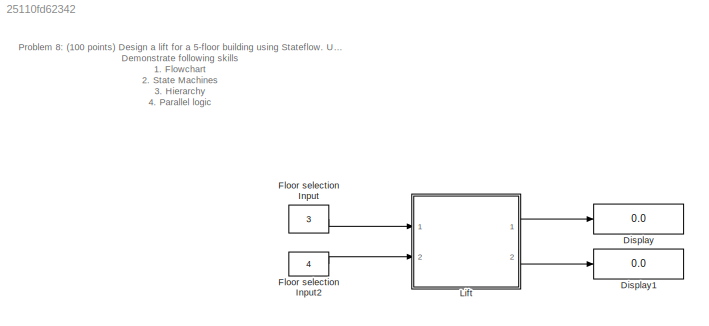
MODEL slx_25110fd62342
KIND model
CONFIG AbsTol = auto
CONFIG EnableMultiTasking = off
CONFIG FixedStep = auto
CONFIG MaxStep = auto
CONFIG MinStep = auto
CONFIG RelTol = 1e-3
CONFIG SampleTimeConstraint = Unconstrained
CONFIG Solver = VariableStepAuto
CONFIG SolverName = VariableStepAuto
CONFIG StartTime = 0.0
CONFIG StopTime = 5
BLOCK [Display] Display
  Decimation = 1
  Ports = [1]
BLOCK [Display] Display1
  Decimation = 1
  Ports = [1]
BLOCK [Constant] Floor selection Input
  Value = 3
BLOCK [Constant] Floor selection Input2
  Value = 4
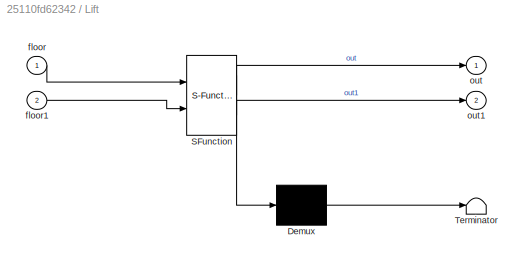
BLOCK [SubSystem] Lift
  ErrorFcn = Stateflow.Translate.translate
  PermitHierarchicalResolution = ExplicitOnly
  Ports = [2, 2]
  RequestExecContextInheritance = off
  SFBlockType = Chart
  TreatAsAtomicUnit = on
BLOCK [Demux] Lift/ Demux 
  Outputs = 1
  Ports = [1, 1]
BLOCK [S-Function] Lift/ SFunction 
  EnableBusSupport = on
  FunctionName = sf_sfun
  PortCounts = [2 3]
  Ports = [2, 3]
  SFcnIsStateOwnerBlock = off
  SFunctionDeploymentMode = off
  Tag = Stateflow S-Function 3
BLOCK [Terminator] Lift/ Terminator 
BLOCK [Inport] Lift/floor
BLOCK [Inport] Lift/floor1
  Port = 2
BLOCK [Outport] Lift/out
BLOCK [Outport] Lift/out1
  Port = 2
ANNOTATION (root): Problem 8: (100 points) Design a lift for a 5-floor building using Stateflow. Use your creativity. Demonstrate following skills 1. Flowchart 2. State Machines 3. Hierarchy 4. Parallel logic 5. Events 6. Stateflow Function
LINE Floor selection Input2:1 -> Lift:2
LINE Floor selection Input:1 -> Lift:1
LINE Lift:1 -> Display:1
LINE Lift:2 -> Display1:1
CHART Lift states=13 transitions=25
  STATE_LABEL 'Start'
  STATE_LABEL 'Lift_For_five_floor'
  STATE_LABEL 'Floor1\nentry:\npresent=1;\nout=1;'
  STATE_LABEL 'Floor2\nentry:\nout=2;\npresent=out;'
  STATE_LABEL 'Floor3\nentry:\nout=3;\npresent=out;'
  STATE_LABEL 'Floor4\nentry:\nout=4;\npresent=out;'
  STATE_LABEL 'Floor5\nentry:\nout=5;\npresent=out'
  STATE_LABEL '[present==floor]'
  STATE_LABEL '[present<floor]'
  STATE_LABEL '[present<floor]'
  STATE_LABEL '[present<floor]'
  STATE_LABEL '[present<floor]'
  STATE_LABEL '[floor==present]'
  STATE_LABEL '[present>floor]'
  STATE_LABEL '[present>floor]'
  STATE_LABEL '[present>floor]'
  STATE_LABEL '[present>floor]'
  STATE_LABEL 'H'
  STATE_LABEL 'Second_input'
  STATE_LABEL 'Floor1\nentry:\npresent=1;\nout1=1;'
  STATE_LABEL 'Floor2\nentry:\nout1=2;\npresent=out1;'
  STATE_LABEL 'Floor3\nentry:\nout1=3;\npresent=out1;'
  STATE_LABEL 'Floor4\nentry:\nout1=4;\npresent=out1;'
  STATE_LABEL 'Floor5\nentry:\nout1=5;\npresent=out1;'
  STATE_LABEL '[present==floor1]'
  STATE_LABEL '[present<floor1]'
  STATE_LABEL '[present<floor1]'
  STATE_LABEL '[present<floor1]'
  STATE_LABEL '[present<floor1]'
  STATE_LABEL '[floor==present]'
  STATE_LABEL '[present>floor1]'
  STATE_LABEL '[present>floor1]'
  STATE_LABEL '[present>floor1]'
  STATE_LABEL '[present>floor1]'
  STATE_LABEL 'H'
  STATE_LABEL '[present==floor]'
  STATE_LABEL 'H'
  STATE_LABEL 'Lift_For_five_floor'
  STATE_LABEL 'Floor1\nentry:\npresent=1;\nout=1;'
  STATE_LABEL 'Floor2\nentry:\nout=2;\npresent=out;'
CHART  states=0 transitions=0
